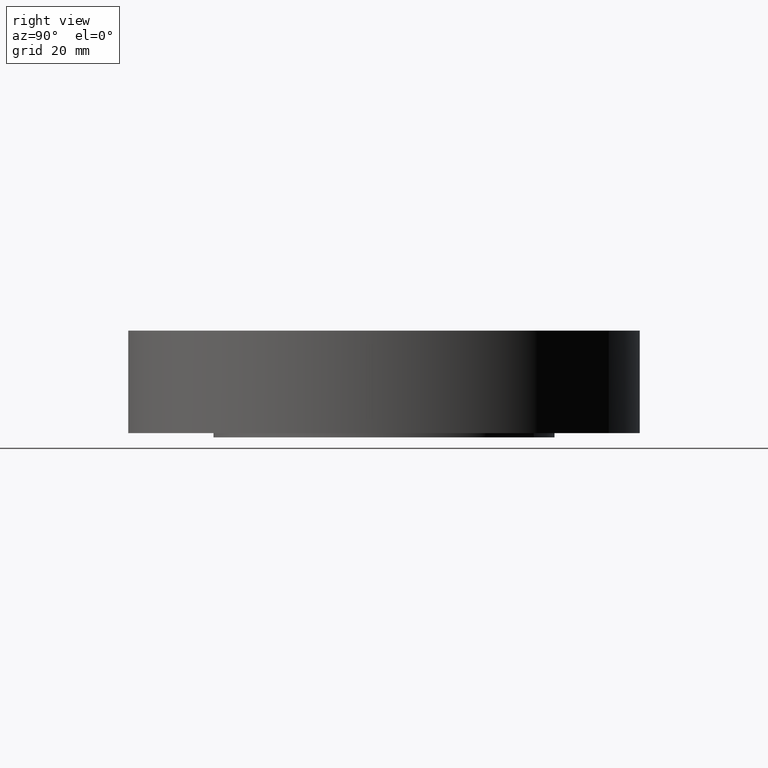
[diagram: clean part render]
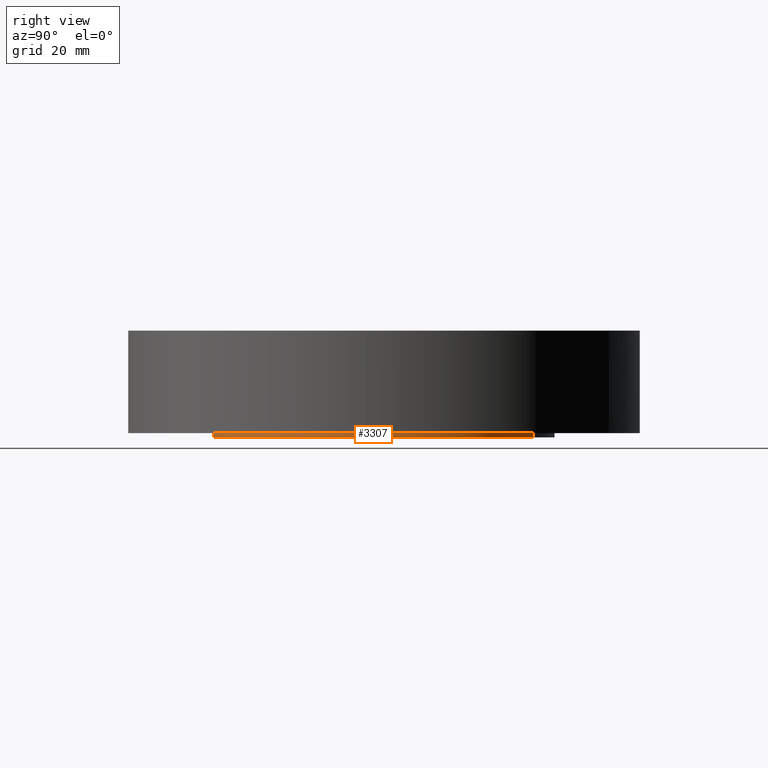
[diagram: same view with one face highlighted and labeled with its STEP entity id]
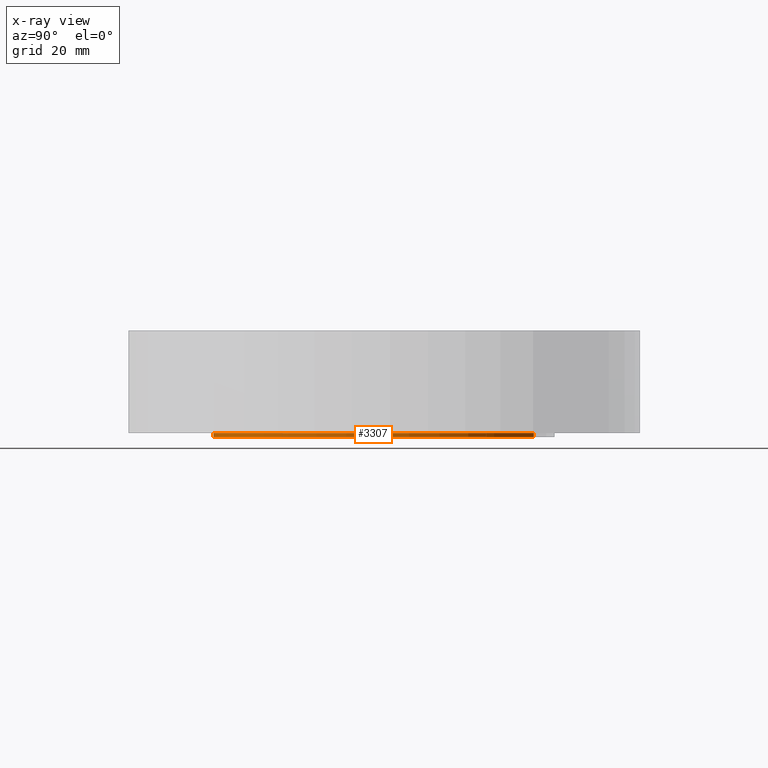
[diagram: x-ray of the same camera — body ghosted, the highlighted face saturated]
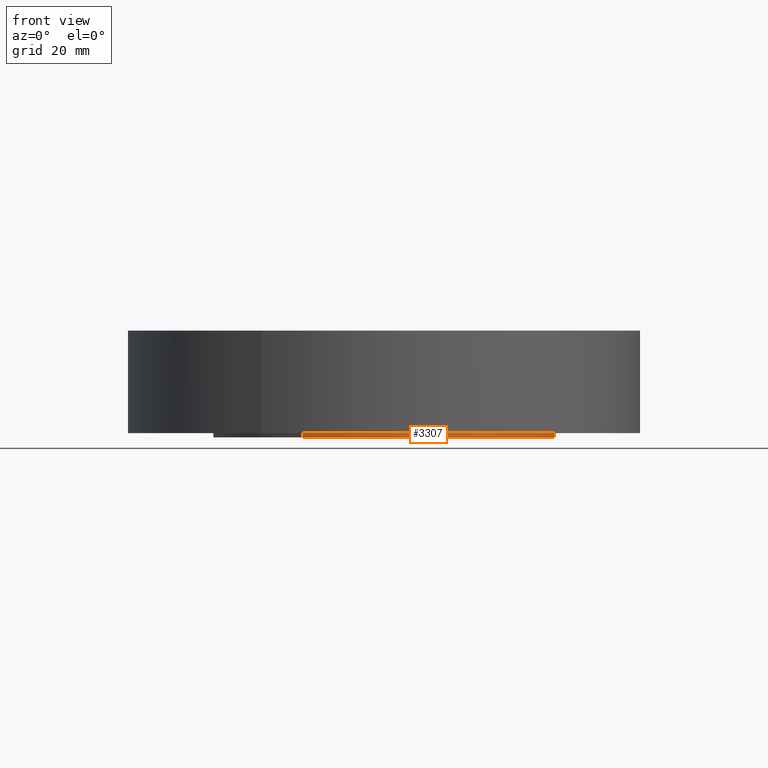
[diagram: same view with one face highlighted and labeled with its STEP entity id]
A machine part, right view. The second image highlights one B-rep face of the part: STEP entity #3307.
The next image is the same camera in x-ray: the body ghosted, the highlighted face saturated — about 0% of this face is hidden behind the body in this view.
A second angle (front view) of the same face is appended — the face is thin or edge-on in the first view.
In plain terms, the highlighted cylindrical surface (partial cylindrical patch) has radius 63.5 mm, axis along (0, 0, -1).
Its self-contained STEP definition (entity closure, byte-faithful):
#3163=AXIS2_PLACEMENT_3D('Circle Axis2P3D',#3161,#3162,$) ;
#3280=AXIS2_PLACEMENT_3D('Cylinder Axis2P3D',#3277,#3278,#3279) ;
#3284=AXIS2_PLACEMENT_3D('Circle Axis2P3D',#3282,#3283,$) ;
#3161=CARTESIAN_POINT('Axis2P3D Location',(0.,0.,0.)) ;
#3165=CARTESIAN_POINT('Vertex',(1.19856384652,2.19395640473,-2.93728296279E-014)) ;
#3167=CARTESIAN_POINT('Vertex',(-1.19856384652,-2.19395640473,-2.93728296279E-014)) ;
#3277=CARTESIAN_POINT('Axis2P3D Location',(0.,0.,0.718750000003)) ;
#3282=CARTESIAN_POINT('Axis2P3D Location',(0.,0.,-0.0625000000003)) ;
#3286=CARTESIAN_POINT('Vertex',(1.19856384652,2.19395640473,-0.0625000000003)) ;
#3288=CARTESIAN_POINT('Vertex',(-1.19856384652,-2.19395640473,-0.0625000000003)) ;
#3291=CARTESIAN_POINT('Line Origine',(1.19856384652,2.19395640473,-0.0312500000002)) ;
#3296=CARTESIAN_POINT('Line Origine',(-1.19856384652,-2.19395640473,-0.0312500000002)) ;
#3162=DIRECTION('Axis2P3D Direction',(0.,0.,-0.0393700787402)) ;
#3278=DIRECTION('Axis2P3D Direction',(0.,0.,-0.0393700787402)) ;
#3279=DIRECTION('Axis2P3D XDirection',(-0.0188750212049,-0.0345504945626,0.)) ;
#3283=DIRECTION('Axis2P3D Direction',(0.,0.,-0.0393700787402)) ;
#3292=DIRECTION('Vector Direction',(0.,0.,-0.0393700787402)) ;
#3297=DIRECTION('Vector Direction',(0.,0.,-0.0393700787402)) ;
#3293=VECTOR('Line Direction',#3292,0.0393700787402) ;
#3298=VECTOR('Line Direction',#3297,0.0393700787402) ;
#3302=ORIENTED_EDGE('',*,*,#3290,.F.) ;
#3303=ORIENTED_EDGE('',*,*,#3295,.T.) ;
#3304=ORIENTED_EDGE('',*,*,#3169,.T.) ;
#3305=ORIENTED_EDGE('',*,*,#3300,.F.) ;
#3307=ADVANCED_FACE('PartBody',(#3306),#3281,.T.) ;
#3164=CIRCLE('generated circle',#3163,2.50000000001) ;
#3285=CIRCLE('generated circle',#3284,2.50000000001) ;
#3281=CYLINDRICAL_SURFACE('generated cylinder',#3280,2.50000000001) ;
#3169=EDGE_CURVE('',#3166,#3168,#3164,.T.) ;
#3290=EDGE_CURVE('',#3287,#3289,#3285,.T.) ;
#3295=EDGE_CURVE('',#3287,#3166,#3294,.F.) ;
#3300=EDGE_CURVE('',#3289,#3168,#3299,.F.) ;
#3301=EDGE_LOOP('',(#3302,#3303,#3304,#3305)) ;
#3306=FACE_OUTER_BOUND('',#3301,.T.) ;
#3294=LINE('Line',#3291,#3293) ;
#3299=LINE('Line',#3296,#3298) ;
#3166=VERTEX_POINT('',#3165) ;
#3168=VERTEX_POINT('',#3167) ;
#3287=VERTEX_POINT('',#3286) ;
#3289=VERTEX_POINT('',#3288) ;